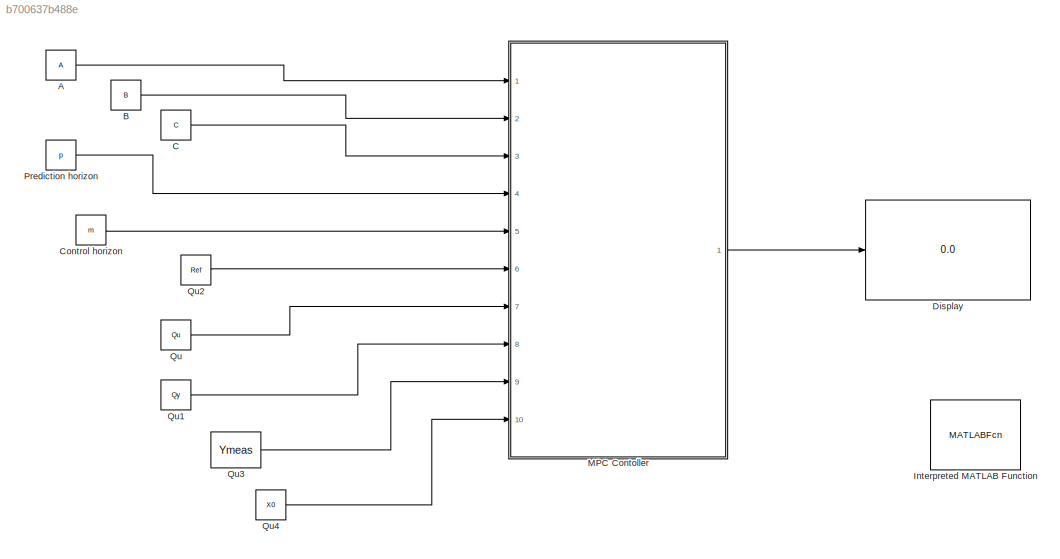
MODEL slx_b700637b488e
KIND model
CONFIG AbsTol = auto
CONFIG FixedStep = auto
CONFIG MaxStep = auto
CONFIG MinStep = auto
CONFIG RelTol = 1e-3
CONFIG SampleTimeConstraint = Unconstrained
CONFIG Solver = ode45
CONFIG SolverMode = Auto
CONFIG SolverName = ode45
CONFIG StartTime = 0.0
CONFIG StopTime = 12
BLOCK [Constant] A
  Value = A
  VectorParams1D = off
BLOCK [Constant] B
  Value = B
  VectorParams1D = off
BLOCK [Constant] C
  Value = C
  VectorParams1D = off
BLOCK [Constant] Control horizon
  Value = m
BLOCK [Display] Display
  Decimation = 1
  Ports = [1]
BLOCK [MATLABFcn] Interpreted MATLAB Function
  MATLABFcn = Yrates
  Ports = [1, 1]
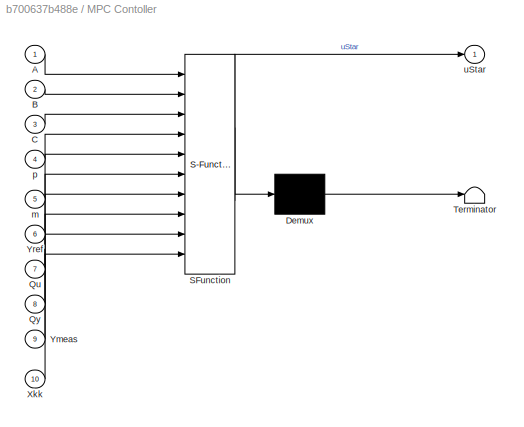
BLOCK [SubSystem] MPC Contoller
  ErrorFcn = Stateflow.Translate.translate
  PermitHierarchicalResolution = ExplicitOnly
  Ports = [10, 1]
  RequestExecContextInheritance = off
  SFBlockType = MATLAB Function
  TreatAsAtomicUnit = on
  Variant = off
BLOCK [Demux] MPC Contoller/ Demux 
  Outputs = 1
  Ports = [1, 1]
BLOCK [S-Function] MPC Contoller/ SFunction 
  EnableBusSupport = on
  FunctionName = sf_sfun
  PortCounts = [10 2]
  Ports = [10, 2]
  SFunctionDeploymentMode = off
  Tag = Stateflow S-Function plant 2
BLOCK [Terminator] MPC Contoller/ Terminator 
BLOCK [Inport] MPC Contoller/A
  IconDisplay = Port number
BLOCK [Inport] MPC Contoller/B
  IconDisplay = Port number
  Port = 2
BLOCK [Inport] MPC Contoller/C
  IconDisplay = Port number
  Port = 3
BLOCK [Inport] MPC Contoller/Qu
  IconDisplay = Port number
  Port = 7
BLOCK [Inport] MPC Contoller/Qy
  IconDisplay = Port number
  Port = 8
BLOCK [Inport] MPC Contoller/Xkk
  IconDisplay = Port number
  Port = 10
BLOCK [Inport] MPC Contoller/Ymeas
  IconDisplay = Port number
  Port = 9
BLOCK [Inport] MPC Contoller/Yref
  IconDisplay = Port number
  Port = 6
BLOCK [Inport] MPC Contoller/m
  IconDisplay = Port number
  Port = 5
BLOCK [Inport] MPC Contoller/p
  IconDisplay = Port number
  Port = 4
BLOCK [Outport] MPC Contoller/uStar
  IconDisplay = Port number
BLOCK [Constant] Prediction horizon
  Value = p
BLOCK [Constant] Qu
  Value = Qu
  VectorParams1D = off
BLOCK [Constant] Qu1
  Value = Qy
  VectorParams1D = off
BLOCK [Constant] Qu2
  Value = Ref
  VectorParams1D = off
BLOCK [Constant] Qu3
  Value = Ymeas
  VectorParams1D = off
BLOCK [Constant] Qu4
  Value = X0
  VectorParams1D = off
LINE A:1 -> MPC Contoller:1
LINE B:1 -> MPC Contoller:2
LINE C:1 -> MPC Contoller:3
LINE Control horizon:1 -> MPC Contoller:5
LINE MPC Contoller:1 -> Display:1
LINE Prediction horizon:1 -> MPC Contoller:4
LINE Qu1:1 -> MPC Contoller:8
LINE Qu2:1 -> MPC Contoller:6
LINE Qu3:1 -> MPC Contoller:9
LINE Qu4:1 -> MPC Contoller:10
LINE Qu:1 -> MPC Contoller:7
CHART MPC Contoller states=1 transitions=1
  STATE_LABEL 'eML_blk_kernel()'
  STATE_LABEL 'SCRIPT:\nfunction uStar = inputPlanSim(A,B,C, p,m,Yref,Qu,Qy,Ymeas, Xkk)\n\n%{\nA,B,C  - State space model matrices\nXkk    - Current estimated state\nYref   - Reference measurement for the prediction horizon size Nxp \nN      - number of measurements\nL      - number of inputs\np      - Prediction horizon\nm      - control horizon\nQu     - input weights\nQy     - measurement weights\n%}\n\n%%\n[n, L] = size(B);...<+864ch>'
